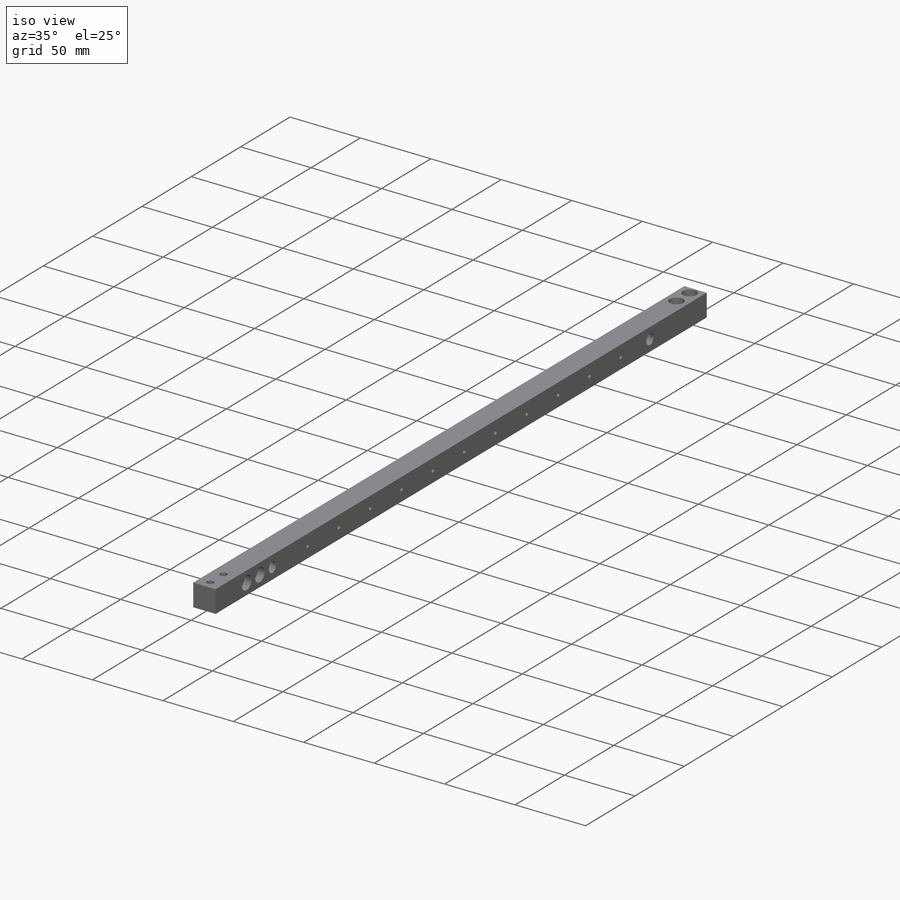
[diagram: iso view]
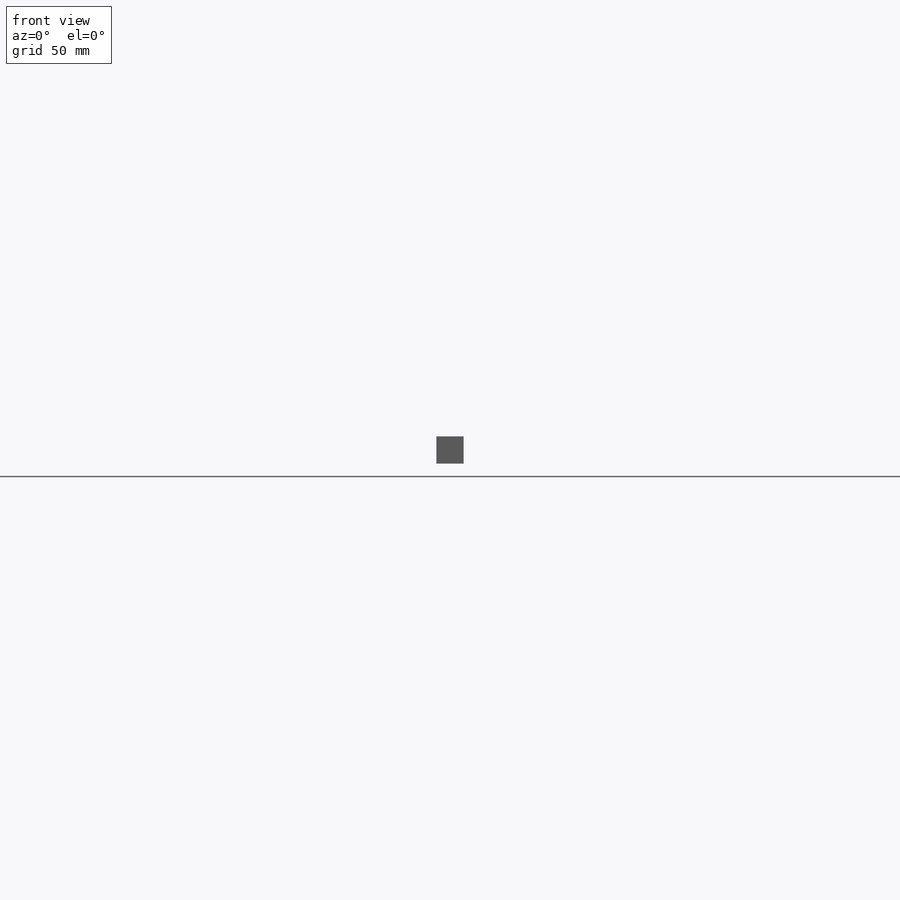
[diagram: front view]
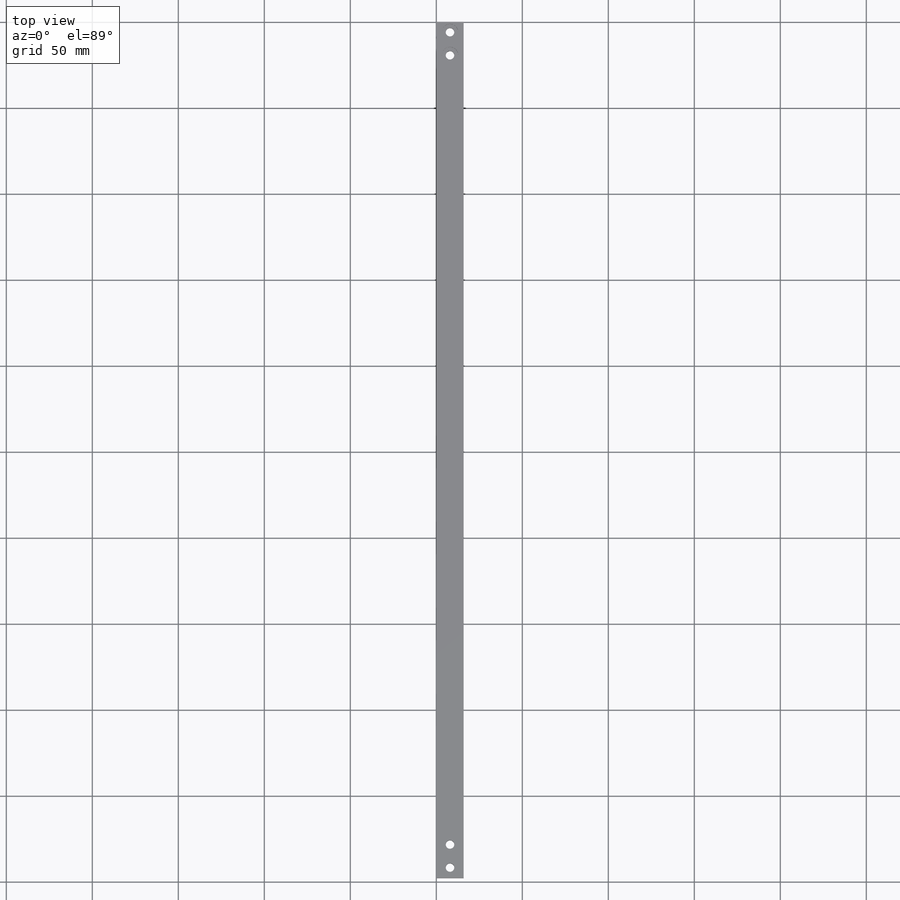
[diagram: top view]
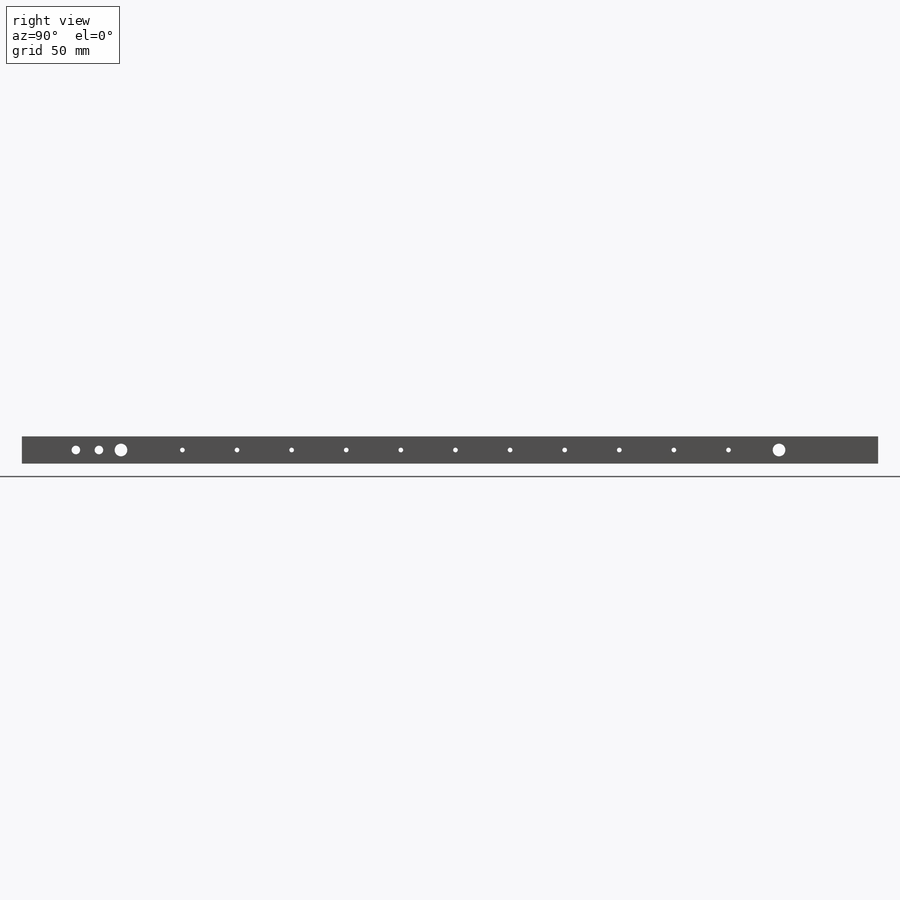
[diagram: right view]
SOLIDWORKS PART (.sldprt)
format: sldprt  version: not decoded by parser v0  size: 305,152 bytes
history: native  units: mm
features: sketch x12, hole x5, material x1, extrude x1, cut_extrude x1 (+13 scaffold rows collapsed)
feature tree (33):
  scaffold x13  (default folders/planes/origin — collapsed)
  material  "Material <not specified>"
  sketch  "Sketch1"  dims[D1=15.875mm D2=15.875mm]
  extrude  "Boss-Extrude1"  Depth=497.84mm
  sketch  "Sketch8"  dims[c1.D1=13.6398mm c1.D5=13.6398mm c2.D1=57.6199mm c2.D2=7.9375mm c2.D3=7.9375mm c2.D4=57.6199mm]
  cut_extrude  "Cut-Extrude1"  Depth=13.08608mm
  hole  "L (0.29) Diameter Hole1"  Diameter=7.366mm Depth=50.8mm
  sketch  "Sketch10"  dims[D1=23.8125mm]
  sketch  "Sketch9"  dims[hole-wizard template sketch: 50 standard entries collapsed; hole parameters above]
  hole  "Tap Drill for #6-32 Tap1"  Diameter=2.7051mm Depth=484.1875mm
  sketch  "Sketch19"  dims[D1=7.9375mm]
  sketch  "Sketch20"  dims[Thru Hole Dia.=2.7051mm Thru Hole Depth=484.1875mm]
  hole  "CBORE for #10 Socket Head Cap Screw3"  Diameter=4.9784mm Depth=25.4mm
  sketch  "Sketch21"
  sketch  "Sketch22"  dims[Hole Dia.=4.9784mm Hole Depth=25.4mm C'Bore Dia.=9.525mm C'Bore Depth=4.826mm Drill Angle=118.0deg]
  hole  "CBORE for #10 Socket Head Cap Screw2"  Diameter=4.9784mm Depth=25.4mm
  sketch  "Sketch23"
  sketch  "Sketch24"  dims[Hole Dia.=4.9784mm Hole Depth=25.4mm C'Bore Dia.=9.525mm C'Bore Depth=4.826mm Drill Angle=118.0deg]
  hole  "CBORE for #10 Socket Head Cap Screw1"  Diameter=4.9784mm Depth=25.4mm
  sketch  "Sketch25"
  sketch  "Sketch26"  dims[Hole Dia.=4.9784mm Hole Depth=25.4mm C'Bore Dia.=9.525mm C'Bore Depth=4.826mm Drill Angle=118.0deg]
decode coverage: 16 of 19 modeling features carry decoded parameters
note: ~ marks probable driven/reference dimensions
summary: Diameter pulled from absorbed wizard sketch
note: suppression state not decoded; provenance and decode notes live in map.json
